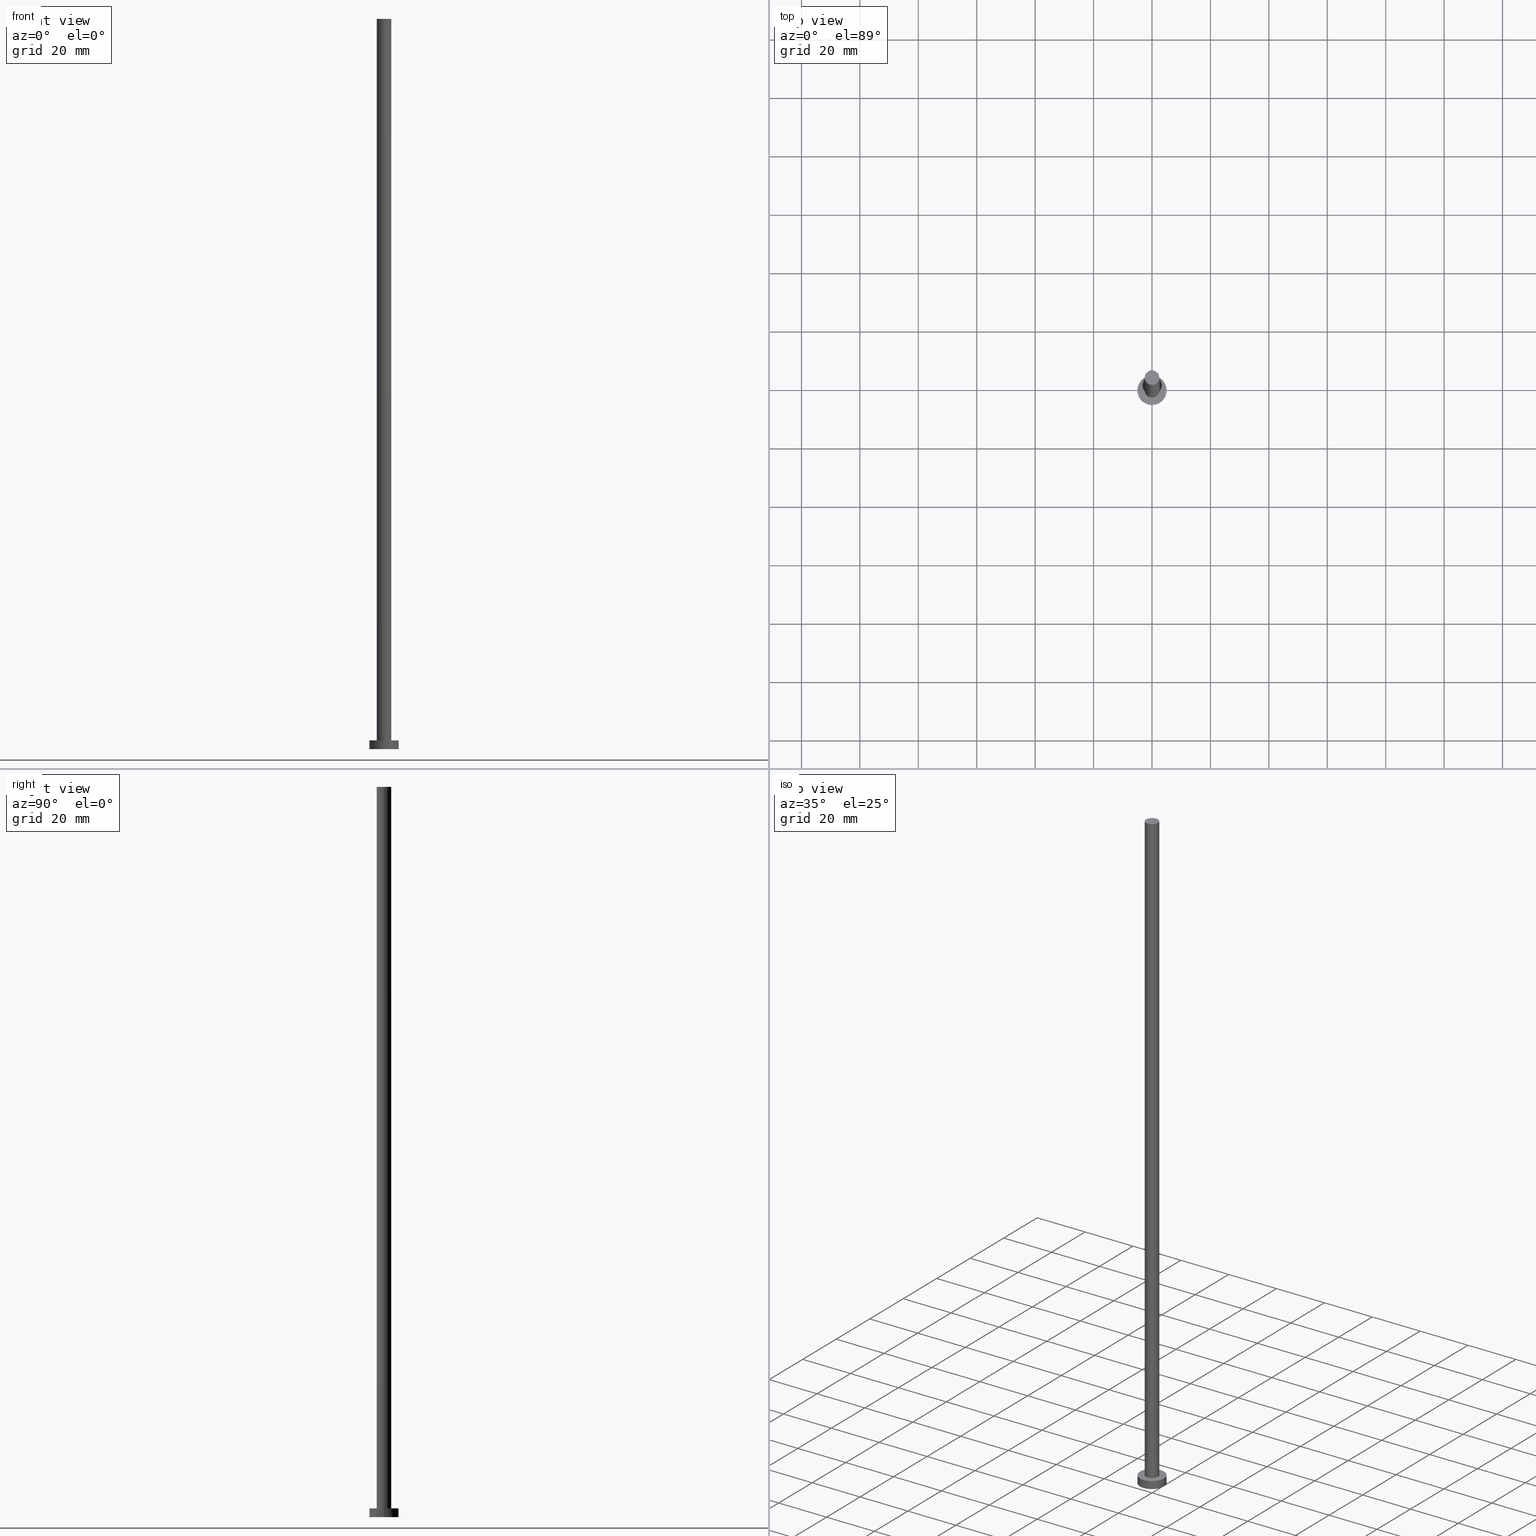
[diagram: canonical four-view strip — front | top / right | iso, engineering-drawing reading convention]
A machine part, canonical four-view strip (front | top / right | iso — engineering-drawing reading convention). The complete STEP part file that produces these views, byte-faithful:
ISO-10303-21;
HEADER;
FILE_DESCRIPTION (( 'STEP AP203' ),
    '1' );
FILE_NAME ('370e.STEP',
    '2023-02-12T12:30:47',
    ( '' ),
    ( '' ),
    'SwSTEP 2.0',
    'SolidWorks 2019',
    '' );
FILE_SCHEMA (( 'CONFIG_CONTROL_DESIGN' ));
ENDSEC;

DATA;
#1 = ADVANCED_FACE ( 'NONE', ( #45, #200 ), #103, .T. ) ;
#2 = APPLICATION_CONTEXT ( 'configuration controlled 3d designs of mechanical parts and assemblies' ) ;
#3 = EDGE_LOOP ( 'NONE', ( #20, #242, #233, #42 ) ) ;
#4 = DATE_TIME_ROLE ( 'classification_date' ) ;
#5 = DIRECTION ( 'NONE',  ( -0.000000000000000000, -0.000000000000000000, -1.000000000000000000 ) ) ;
#6 = CARTESIAN_POINT ( 'NONE',  ( -2.500000000000000000, 0.000000000000000000, 250.0000000000000000 ) ) ;
#7 = APPROVAL_DATE_TIME ( #77, #244 ) ;
#8 = DIRECTION ( 'NONE',  ( -0.000000000000000000, -0.000000000000000000, -1.000000000000000000 ) ) ;
#9 = DIRECTION ( 'NONE',  ( 1.000000000000000000, 0.000000000000000000, 0.000000000000000000 ) ) ;
#10 = AXIS2_PLACEMENT_3D ( 'NONE', #46, #197, #12 ) ;
#11 = PERSON_AND_ORGANIZATION ( #105, #234 ) ;
#12 = DIRECTION ( 'NONE',  ( 1.000000000000000000, 0.000000000000000000, 0.000000000000000000 ) ) ;
#13 = EDGE_CURVE ( 'NONE', #56, #173, #50, .T. ) ;
#14 = PERSON_AND_ORGANIZATION_ROLE ( 'design_supplier' ) ;
#15 = EDGE_LOOP ( 'NONE', ( #152, #137 ) ) ;
#16 = PERSON_AND_ORGANIZATION ( #105, #234 ) ;
#17 = CC_DESIGN_DATE_AND_TIME_ASSIGNMENT ( #165, #107, ( #32 ) ) ;
#18 = CC_DESIGN_APPROVAL ( #244, ( #156 ) ) ;
#19 = CC_DESIGN_APPROVAL ( #68, ( #124 ) ) ;
#20 = ORIENTED_EDGE ( 'NONE', *, *, #91, .F. ) ;
#21 = LOCAL_TIME ( 13, 30, 47.00000000000000000, #243 ) ;
#22 = ORIENTED_EDGE ( 'NONE', *, *, #136, .F. ) ;
#23 = VERTEX_POINT ( 'NONE', #203 ) ;
#24 = CALENDAR_DATE ( 2023, 12, 2 ) ;
#25 = CIRCLE ( 'NONE', #205, 2.500000000000000000 ) ;
#26 = ADVANCED_BREP_SHAPE_REPRESENTATION ( '370e', ( #249, #90 ), #71 ) ;
#27 = APPROVAL_PERSON_ORGANIZATION ( #241, #68, #64 ) ;
#28 = CARTESIAN_POINT ( 'NONE',  ( 0.000000000000000000, 0.000000000000000000, 0.000000000000000000 ) ) ;
#29 = CARTESIAN_POINT ( 'NONE',  ( 0.000000000000000000, 0.000000000000000000, 0.000000000000000000 ) ) ;
#30 = DIRECTION ( 'NONE',  ( 0.000000000000000000, 0.000000000000000000, 1.000000000000000000 ) ) ;
#31 = DIRECTION ( 'NONE',  ( 0.000000000000000000, 0.000000000000000000, 1.000000000000000000 ) ) ;
#32 = PRODUCT_DEFINITION ( 'NEZN�M�', '', #124, #85 ) ;
#33 = CIRCLE ( 'NONE', #251, 5.000000000000000000 ) ;
#34 = DIRECTION ( 'NONE',  ( -0.000000000000000000, -0.000000000000000000, -1.000000000000000000 ) ) ;
#35 = PERSON_AND_ORGANIZATION ( #105, #234 ) ;
#36 = CALENDAR_DATE ( 2023, 12, 2 ) ;
#37 = DIRECTION ( 'NONE',  ( 1.000000000000000000, 0.000000000000000000, 0.000000000000000000 ) ) ;
#38 = CARTESIAN_POINT ( 'NONE',  ( 0.000000000000000000, 0.000000000000000000, 0.000000000000000000 ) ) ;
#39 = EDGE_LOOP ( 'NONE', ( #118, #67, #254, #175 ) ) ;
#40 = ORIENTED_EDGE ( 'NONE', *, *, #126, .F. ) ;
#41 = LOCAL_TIME ( 13, 30, 47.00000000000000000, #135 ) ;
#42 = ORIENTED_EDGE ( 'NONE', *, *, #227, .F. ) ;
#43 = ORIENTED_EDGE ( 'NONE', *, *, #194, .F. ) ;
#44 = CYLINDRICAL_SURFACE ( 'NONE', #150, 5.000000000000000000 ) ;
#45 = FACE_BOUND ( 'NONE', #130, .T. ) ;
#46 = CARTESIAN_POINT ( 'NONE',  ( 0.000000000000000000, 0.000000000000000000, 250.0000000000000000 ) ) ;
#47 = PERSON_AND_ORGANIZATION ( #105, #234 ) ;
#48 = DIRECTION ( 'NONE',  ( 0.000000000000000000, 0.000000000000000000, 1.000000000000000000 ) ) ;
#49 = PERSON_AND_ORGANIZATION ( #105, #234 ) ;
#50 = LINE ( 'NONE', #121, #199 ) ;
#51 = ADVANCED_FACE ( 'NONE', ( #225 ), #181, .T. ) ;
#52 = DIRECTION ( 'NONE',  ( 0.000000000000000000, 0.000000000000000000, 1.000000000000000000 ) ) ;
#53 = CC_DESIGN_PERSON_AND_ORGANIZATION_ASSIGNMENT ( #11, #129, ( #235 ) ) ;
#54 = FACE_OUTER_BOUND ( 'NONE', #39, .T. ) ;
#55 = CARTESIAN_POINT ( 'NONE',  ( 0.000000000000000000, 0.000000000000000000, 250.0000000000000000 ) ) ;
#56 = VERTEX_POINT ( 'NONE', #120 ) ;
#57 = AXIS2_PLACEMENT_3D ( 'NONE', #180, #83, #146 ) ;
#58 = CYLINDRICAL_SURFACE ( 'NONE', #187, 2.500000000000000000 ) ;
#59 = EDGE_CURVE ( 'NONE', #173, #70, #25, .T. ) ;
#60 =( LENGTH_UNIT ( ) NAMED_UNIT ( * ) SI_UNIT ( .MILLI., .METRE. ) );
#61 = DIRECTION ( 'NONE',  ( 0.000000000000000000, 0.000000000000000000, 1.000000000000000000 ) ) ;
#62 = DATE_AND_TIME ( #163, #21 ) ;
#63 = DIRECTION ( 'NONE',  ( -0.000000000000000000, -0.000000000000000000, -1.000000000000000000 ) ) ;
#64 = APPROVAL_ROLE ( '' ) ;
#65 = DIRECTION ( 'NONE',  ( -0.000000000000000000, -0.000000000000000000, -1.000000000000000000 ) ) ;
#66 = CC_DESIGN_APPROVAL ( #109, ( #32 ) ) ;
#67 = ORIENTED_EDGE ( 'NONE', *, *, #230, .F. ) ;
#68 = APPROVAL ( #246, 'NEUR�EN�' ) ;
#69 = AXIS2_PLACEMENT_3D ( 'NONE', #28, #48, #195 ) ;
#70 = VERTEX_POINT ( 'NONE', #222 ) ;
#71 =( GEOMETRIC_REPRESENTATION_CONTEXT ( 3 ) GLOBAL_UNCERTAINTY_ASSIGNED_CONTEXT ( ( #212 ) ) GLOBAL_UNIT_ASSIGNED_CONTEXT ( ( #60, #99, #158 ) ) REPRESENTATION_CONTEXT ( 'NONE', 'WORKASPACE' ) );
#72 = DIRECTION ( 'NONE',  ( 1.000000000000000000, 0.000000000000000000, 0.000000000000000000 ) ) ;
#73 = VERTEX_POINT ( 'NONE', #226 ) ;
#74 = ORIENTED_EDGE ( 'NONE', *, *, #126, .T. ) ;
#75 = CC_DESIGN_PERSON_AND_ORGANIZATION_ASSIGNMENT ( #198, #202, ( #124 ) ) ;
#76 = EDGE_LOOP ( 'NONE', ( #95, #174, #184, #22 ) ) ;
#77 = DATE_AND_TIME ( #24, #140 ) ;
#78 = CARTESIAN_POINT ( 'NONE',  ( -5.000000000000000000, 0.000000000000000000, 3.000000000000000000 ) ) ;
#79 = FACE_OUTER_BOUND ( 'NONE', #76, .T. ) ;
#80 = DIRECTION ( 'NONE',  ( 0.000000000000000000, 0.000000000000000000, 1.000000000000000000 ) ) ;
#81 = CARTESIAN_POINT ( 'NONE',  ( 0.000000000000000000, 0.000000000000000000, 250.0000000000000000 ) ) ;
#82 = FACE_OUTER_BOUND ( 'NONE', #177, .T. ) ;
#83 = DIRECTION ( 'NONE',  ( 0.000000000000000000, 0.000000000000000000, 1.000000000000000000 ) ) ;
#84 = PERSON_AND_ORGANIZATION_ROLE ( 'classification_officer' ) ;
#85 = DESIGN_CONTEXT ( 'detailed design', #2, 'design' ) ;
#86 = CARTESIAN_POINT ( 'NONE',  ( 0.000000000000000000, 0.000000000000000000, 3.000000000000000000 ) ) ;
#87 = CIRCLE ( 'NONE', #128, 5.000000000000000000 ) ;
#88 = PRODUCT_RELATED_PRODUCT_CATEGORY ( 'detail', '', ( #235 ) ) ;
#89 = AXIS2_PLACEMENT_3D ( 'NONE', #86, #178, #167 ) ;
#90 = AXIS2_PLACEMENT_3D ( 'NONE', #29, #80, #159 ) ;
#91 = EDGE_CURVE ( 'NONE', #23, #219, #93, .T. ) ;
#92 = DIRECTION ( 'NONE',  ( -1.000000000000000000, 0.000000000000000000, 0.000000000000000000 ) ) ;
#93 = CIRCLE ( 'NONE', #89, 5.000000000000000000 ) ;
#94 = CARTESIAN_POINT ( 'NONE',  ( 5.000000000000000000, 6.123233995736766282E-16, 3.000000000000000000 ) ) ;
#95 = ORIENTED_EDGE ( 'NONE', *, *, #176, .F. ) ;
#96 = CC_DESIGN_DATE_AND_TIME_ASSIGNMENT ( #255, #4, ( #156 ) ) ;
#97 = CALENDAR_DATE ( 2023, 12, 2 ) ;
#98 = ORIENTED_EDGE ( 'NONE', *, *, #176, .T. ) ;
#99 =( NAMED_UNIT ( * ) PLANE_ANGLE_UNIT ( ) SI_UNIT ( $, .RADIAN. ) );
#100 = ADVANCED_FACE ( 'NONE', ( #238 ), #106, .F. ) ;
#101 = LINE ( 'NONE', #6, #210 ) ;
#102 = APPLICATION_PROTOCOL_DEFINITION ( 'international standard', 'config_control_design', 1994, #248 ) ;
#103 = PLANE ( 'NONE',  #57 ) ;
#104 = CARTESIAN_POINT ( 'NONE',  ( 0.000000000000000000, 0.000000000000000000, 3.000000000000000000 ) ) ;
#105 = PERSON ( 'NEUR�EN�', 'NEUR�EN�', 'NEUR�EN�', ('NEUR�EN�'), ('NEUR�EN�'), ('NEUR�EN�') ) ;
#106 = PLANE ( 'NONE',  #69 ) ;
#107 = DATE_TIME_ROLE ( 'creation_date' ) ;
#108 = DIRECTION ( 'NONE',  ( 0.000000000000000000, 0.000000000000000000, 1.000000000000000000 ) ) ;
#109 = APPROVAL ( #125, 'NEUR�EN�' ) ;
#110 = CIRCLE ( 'NONE', #10, 2.500000000000000000 ) ;
#111 = CYLINDRICAL_SURFACE ( 'NONE', #211, 2.500000000000000000 ) ;
#112 = DIRECTION ( 'NONE',  ( 0.000000000000000000, 0.000000000000000000, 1.000000000000000000 ) ) ;
#113 = CARTESIAN_POINT ( 'NONE',  ( 0.000000000000000000, 0.000000000000000000, 3.000000000000000000 ) ) ;
#114 = APPROVAL_ROLE ( '' ) ;
#115 = CIRCLE ( 'NONE', #166, 5.000000000000000000 ) ;
#116 = AXIS2_PLACEMENT_3D ( 'NONE', #113, #237, #196 ) ;
#117 = EDGE_LOOP ( 'NONE', ( #138, #98 ) ) ;
#118 = ORIENTED_EDGE ( 'NONE', *, *, #217, .F. ) ;
#119 = DIRECTION ( 'NONE',  ( -0.000000000000000000, -0.000000000000000000, -1.000000000000000000 ) ) ;
#120 = CARTESIAN_POINT ( 'NONE',  ( 2.500000000000000000, 3.061616997868383141E-16, 250.0000000000000000 ) ) ;
#121 = CARTESIAN_POINT ( 'NONE',  ( 2.500000000000000000, 3.061616997868383141E-16, 250.0000000000000000 ) ) ;
#122 = CALENDAR_DATE ( 2023, 12, 2 ) ;
#123 = APPROVAL_DATE_TIME ( #185, #68 ) ;
#124 = PRODUCT_DEFINITION_FORMATION_WITH_SPECIFIED_SOURCE ( 'LIBOVOLN�', '', #235, .NOT_KNOWN. ) ;
#125 = APPROVAL_STATUS ( 'not_yet_approved' ) ;
#126 = EDGE_CURVE ( 'NONE', #70, #173, #228, .T. ) ;
#127 = CC_DESIGN_PERSON_AND_ORGANIZATION_ASSIGNMENT ( #47, #143, ( #32 ) ) ;
#128 = AXIS2_PLACEMENT_3D ( 'NONE', #38, #52, #37 ) ;
#129 = PERSON_AND_ORGANIZATION_ROLE ( 'design_owner' ) ;
#130 = EDGE_LOOP ( 'NONE', ( #40, #157 ) ) ;
#131 = APPROVAL_STATUS ( 'not_yet_approved' ) ;
#132 = CC_DESIGN_PERSON_AND_ORGANIZATION_ASSIGNMENT ( #49, #84, ( #156 ) ) ;
#133 = DIRECTION ( 'NONE',  ( 1.000000000000000000, 0.000000000000000000, 0.000000000000000000 ) ) ;
#134 = ORIENTED_EDGE ( 'NONE', *, *, #136, .T. ) ;
#135 = COORDINATED_UNIVERSAL_TIME_OFFSET ( 1, 0, .AHEAD. ) ;
#136 = EDGE_CURVE ( 'NONE', #192, #70, #101, .T. ) ;
#137 = ORIENTED_EDGE ( 'NONE', *, *, #91, .T. ) ;
#138 = ORIENTED_EDGE ( 'NONE', *, *, #252, .T. ) ;
#139 = DIRECTION ( 'NONE',  ( 1.000000000000000000, 0.000000000000000000, -0.000000000000000000 ) ) ;
#140 = LOCAL_TIME ( 13, 30, 47.00000000000000000, #193 ) ;
#141 = CARTESIAN_POINT ( 'NONE',  ( 0.000000000000000000, 0.000000000000000000, 3.000000000000000000 ) ) ;
#142 = DIRECTION ( 'NONE',  ( 1.000000000000000000, 0.000000000000000000, 0.000000000000000000 ) ) ;
#143 = PERSON_AND_ORGANIZATION_ROLE ( 'creator' ) ;
#144 = CARTESIAN_POINT ( 'NONE',  ( 0.000000000000000000, 0.000000000000000000, 250.0000000000000000 ) ) ;
#145 = COORDINATED_UNIVERSAL_TIME_OFFSET ( 1, 0, .AHEAD. ) ;
#146 = DIRECTION ( 'NONE',  ( 1.000000000000000000, 0.000000000000000000, -0.000000000000000000 ) ) ;
#147 = COORDINATED_UNIVERSAL_TIME_OFFSET ( 1, 0, .AHEAD. ) ;
#148 = DIRECTION ( 'NONE',  ( 1.000000000000000000, 0.000000000000000000, 0.000000000000000000 ) ) ;
#149 = PRODUCT_DEFINITION_SHAPE ( 'NONE', 'NONE',  #32 ) ;
#150 = AXIS2_PLACEMENT_3D ( 'NONE', #141, #8, #154 ) ;
#151 = LINE ( 'NONE', #78, #191 ) ;
#152 = ORIENTED_EDGE ( 'NONE', *, *, #230, .T. ) ;
#153 = ADVANCED_FACE ( 'NONE', ( #79 ), #58, .T. ) ;
#154 = DIRECTION ( 'NONE',  ( -1.000000000000000000, 0.000000000000000000, 0.000000000000000000 ) ) ;
#155 = EDGE_LOOP ( 'NONE', ( #43, #215 ) ) ;
#156 = SECURITY_CLASSIFICATION ( '', '', #223 ) ;
#157 = ORIENTED_EDGE ( 'NONE', *, *, #59, .F. ) ;
#158 =( NAMED_UNIT ( * ) SI_UNIT ( $, .STERADIAN. ) SOLID_ANGLE_UNIT ( ) );
#159 = DIRECTION ( 'NONE',  ( 1.000000000000000000, 0.000000000000000000, 0.000000000000000000 ) ) ;
#160 = DIRECTION ( 'NONE',  ( -1.000000000000000000, 0.000000000000000000, 0.000000000000000000 ) ) ;
#161 = EDGE_CURVE ( 'NONE', #73, #190, #115, .T. ) ;
#162 = CC_DESIGN_SECURITY_CLASSIFICATION ( #156, ( #124 ) ) ;
#163 = CALENDAR_DATE ( 2023, 12, 2 ) ;
#164 = CARTESIAN_POINT ( 'NONE',  ( 0.000000000000000000, 0.000000000000000000, 3.000000000000000000 ) ) ;
#165 = DATE_AND_TIME ( #36, #250 ) ;
#166 = AXIS2_PLACEMENT_3D ( 'NONE', #240, #61, #142 ) ;
#167 = DIRECTION ( 'NONE',  ( 1.000000000000000000, 0.000000000000000000, 0.000000000000000000 ) ) ;
#168 = CARTESIAN_POINT ( 'NONE',  ( 0.000000000000000000, 0.000000000000000000, 250.0000000000000000 ) ) ;
#169 = AXIS2_PLACEMENT_3D ( 'NONE', #55, #112, #133 ) ;
#170 = CC_DESIGN_PERSON_AND_ORGANIZATION_ASSIGNMENT ( #35, #14, ( #124 ) ) ;
#171 = CYLINDRICAL_SURFACE ( 'NONE', #116, 5.000000000000000000 ) ;
#172 = CARTESIAN_POINT ( 'NONE',  ( 0.000000000000000000, 0.000000000000000000, 3.000000000000000000 ) ) ;
#173 = VERTEX_POINT ( 'NONE', #220 ) ;
#174 = ORIENTED_EDGE ( 'NONE', *, *, #13, .T. ) ;
#175 = ORIENTED_EDGE ( 'NONE', *, *, #194, .T. ) ;
#176 = EDGE_CURVE ( 'NONE', #56, #192, #110, .T. ) ;
#177 = EDGE_LOOP ( 'NONE', ( #209, #231, #134, #74 ) ) ;
#178 = DIRECTION ( 'NONE',  ( 0.000000000000000000, 0.000000000000000000, 1.000000000000000000 ) ) ;
#179 = ADVANCED_FACE ( 'NONE', ( #82 ), #111, .T. ) ;
#180 = CARTESIAN_POINT ( 'NONE',  ( 0.000000000000000000, 0.000000000000000000, 3.000000000000000000 ) ) ;
#181 = PLANE ( 'NONE',  #186 ) ;
#182 = APPROVAL_PERSON_ORGANIZATION ( #216, #244, #114 ) ;
#183 = APPLICATION_PROTOCOL_DEFINITION ( 'international standard', 'config_control_design', 1994, #2 ) ;
#184 = ORIENTED_EDGE ( 'NONE', *, *, #59, .T. ) ;
#185 = DATE_AND_TIME ( #122, #229 ) ;
#186 = AXIS2_PLACEMENT_3D ( 'NONE', #144, #108, #139 ) ;
#187 = AXIS2_PLACEMENT_3D ( 'NONE', #81, #65, #160 ) ;
#188 = CARTESIAN_POINT ( 'NONE',  ( -2.500000000000000000, 0.000000000000000000, 250.0000000000000000 ) ) ;
#189 = LINE ( 'NONE', #94, #239 ) ;
#190 = VERTEX_POINT ( 'NONE', #208 ) ;
#191 = VECTOR ( 'NONE', #119, 1000.000000000000000 ) ;
#192 = VERTEX_POINT ( 'NONE', #188 ) ;
#193 = COORDINATED_UNIVERSAL_TIME_OFFSET ( 1, 0, .AHEAD. ) ;
#194 = EDGE_CURVE ( 'NONE', #190, #73, #87, .T. ) ;
#195 = DIRECTION ( 'NONE',  ( 1.000000000000000000, 0.000000000000000000, -0.000000000000000000 ) ) ;
#196 = DIRECTION ( 'NONE',  ( -1.000000000000000000, 0.000000000000000000, 0.000000000000000000 ) ) ;
#197 = DIRECTION ( 'NONE',  ( 0.000000000000000000, 0.000000000000000000, 1.000000000000000000 ) ) ;
#198 = PERSON_AND_ORGANIZATION ( #105, #234 ) ;
#199 = VECTOR ( 'NONE', #63, 1000.000000000000000 ) ;
#200 = FACE_OUTER_BOUND ( 'NONE', #15, .T. ) ;
#201 = CIRCLE ( 'NONE', #169, 2.500000000000000000 ) ;
#202 = PERSON_AND_ORGANIZATION_ROLE ( 'creator' ) ;
#203 = CARTESIAN_POINT ( 'NONE',  ( 5.000000000000000000, 6.123233995736766282E-16, 3.000000000000000000 ) ) ;
#204 = APPROVAL_DATE_TIME ( #62, #109 ) ;
#205 = AXIS2_PLACEMENT_3D ( 'NONE', #104, #30, #148 ) ;
#206 = CARTESIAN_POINT ( 'NONE',  ( -5.000000000000000000, 0.000000000000000000, 3.000000000000000000 ) ) ;
#207 = SHAPE_DEFINITION_REPRESENTATION ( #149, #26 ) ;
#208 = CARTESIAN_POINT ( 'NONE',  ( -5.000000000000000000, 0.000000000000000000, 0.000000000000000000 ) ) ;
#209 = ORIENTED_EDGE ( 'NONE', *, *, #13, .F. ) ;
#210 = VECTOR ( 'NONE', #34, 1000.000000000000000 ) ;
#211 = AXIS2_PLACEMENT_3D ( 'NONE', #168, #232, #92 ) ;
#212 = UNCERTAINTY_MEASURE_WITH_UNIT (LENGTH_MEASURE( 1.000000000000000082E-05 ), #60, 'distance_accuracy_value', 'NONE');
#213 = ADVANCED_FACE ( 'NONE', ( #54 ), #171, .T. ) ;
#214 = APPROVAL_PERSON_ORGANIZATION ( #16, #109, #221 ) ;
#215 = ORIENTED_EDGE ( 'NONE', *, *, #161, .F. ) ;
#216 = PERSON_AND_ORGANIZATION ( #105, #234 ) ;
#217 = EDGE_CURVE ( 'NONE', #23, #73, #189, .T. ) ;
#218 = MECHANICAL_CONTEXT ( 'NONE', #248, 'mechanical' ) ;
#219 = VERTEX_POINT ( 'NONE', #206 ) ;
#220 = CARTESIAN_POINT ( 'NONE',  ( 2.500000000000000000, 3.061616997868383141E-16, 3.000000000000000000 ) ) ;
#221 = APPROVAL_ROLE ( '' ) ;
#222 = CARTESIAN_POINT ( 'NONE',  ( -2.500000000000000000, 0.000000000000000000, 3.000000000000000000 ) ) ;
#223 = SECURITY_CLASSIFICATION_LEVEL ( 'unclassified' ) ;
#224 = AXIS2_PLACEMENT_3D ( 'NONE', #164, #245, #9 ) ;
#225 = FACE_OUTER_BOUND ( 'NONE', #117, .T. ) ;
#226 = CARTESIAN_POINT ( 'NONE',  ( 5.000000000000000000, 6.123233995736766282E-16, 0.000000000000000000 ) ) ;
#227 = EDGE_CURVE ( 'NONE', #219, #190, #151, .T. ) ;
#228 = CIRCLE ( 'NONE', #224, 2.500000000000000000 ) ;
#229 = LOCAL_TIME ( 13, 30, 47.00000000000000000, #145 ) ;
#230 = EDGE_CURVE ( 'NONE', #219, #23, #33, .T. ) ;
#231 = ORIENTED_EDGE ( 'NONE', *, *, #252, .F. ) ;
#232 = DIRECTION ( 'NONE',  ( -0.000000000000000000, -0.000000000000000000, -1.000000000000000000 ) ) ;
#233 = ORIENTED_EDGE ( 'NONE', *, *, #161, .T. ) ;
#234 = ORGANIZATION ( 'NEUR�EN�', 'NEUR�EN�', '' ) ;
#235 = PRODUCT ( '370e', '370e', '', ( #218 ) ) ;
#236 = ADVANCED_FACE ( 'NONE', ( #253 ), #44, .T. ) ;
#237 = DIRECTION ( 'NONE',  ( -0.000000000000000000, -0.000000000000000000, -1.000000000000000000 ) ) ;
#238 = FACE_OUTER_BOUND ( 'NONE', #155, .T. ) ;
#239 = VECTOR ( 'NONE', #5, 1000.000000000000000 ) ;
#240 = CARTESIAN_POINT ( 'NONE',  ( 0.000000000000000000, 0.000000000000000000, 0.000000000000000000 ) ) ;
#241 = PERSON_AND_ORGANIZATION ( #105, #234 ) ;
#242 = ORIENTED_EDGE ( 'NONE', *, *, #217, .T. ) ;
#243 = COORDINATED_UNIVERSAL_TIME_OFFSET ( 1, 0, .AHEAD. ) ;
#244 = APPROVAL ( #131, 'NEUR�EN�' ) ;
#245 = DIRECTION ( 'NONE',  ( 0.000000000000000000, 0.000000000000000000, 1.000000000000000000 ) ) ;
#246 = APPROVAL_STATUS ( 'not_yet_approved' ) ;
#247 = CLOSED_SHELL ( 'NONE', ( #153, #236, #213, #1, #100, #179, #51 ) ) ;
#248 = APPLICATION_CONTEXT ( 'configuration controlled 3d designs of mechanical parts and assemblies' ) ;
#249 = MANIFOLD_SOLID_BREP ( 'P�idat vysunut�m3', #247 ) ;
#250 = LOCAL_TIME ( 13, 30, 47.00000000000000000, #147 ) ;
#251 = AXIS2_PLACEMENT_3D ( 'NONE', #172, #31, #72 ) ;
#252 = EDGE_CURVE ( 'NONE', #192, #56, #201, .T. ) ;
#253 = FACE_OUTER_BOUND ( 'NONE', #3, .T. ) ;
#254 = ORIENTED_EDGE ( 'NONE', *, *, #227, .T. ) ;
#255 = DATE_AND_TIME ( #97, #41 ) ;
ENDSEC;
END-ISO-10303-21;
